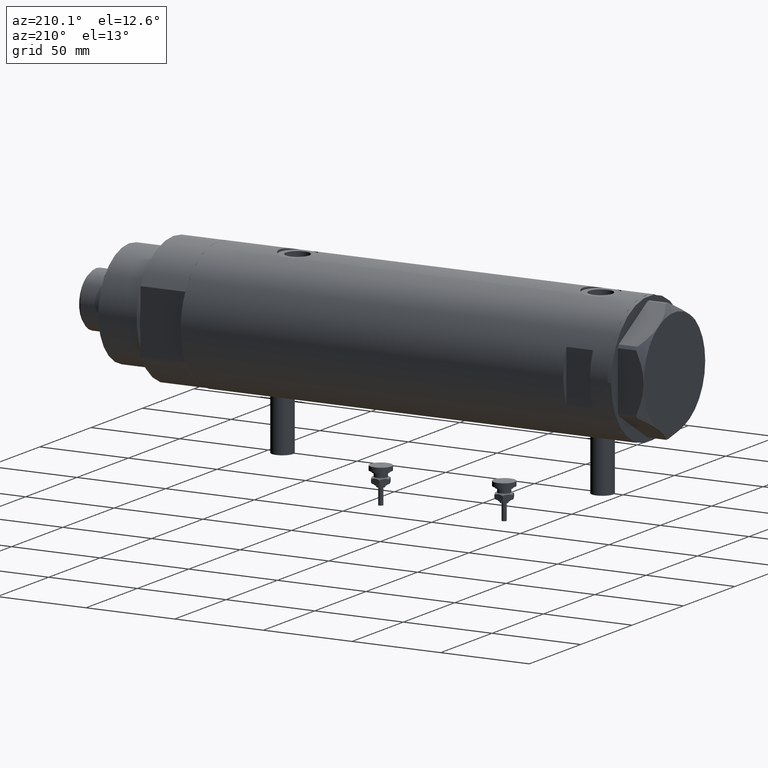
[diagram: clean part render]
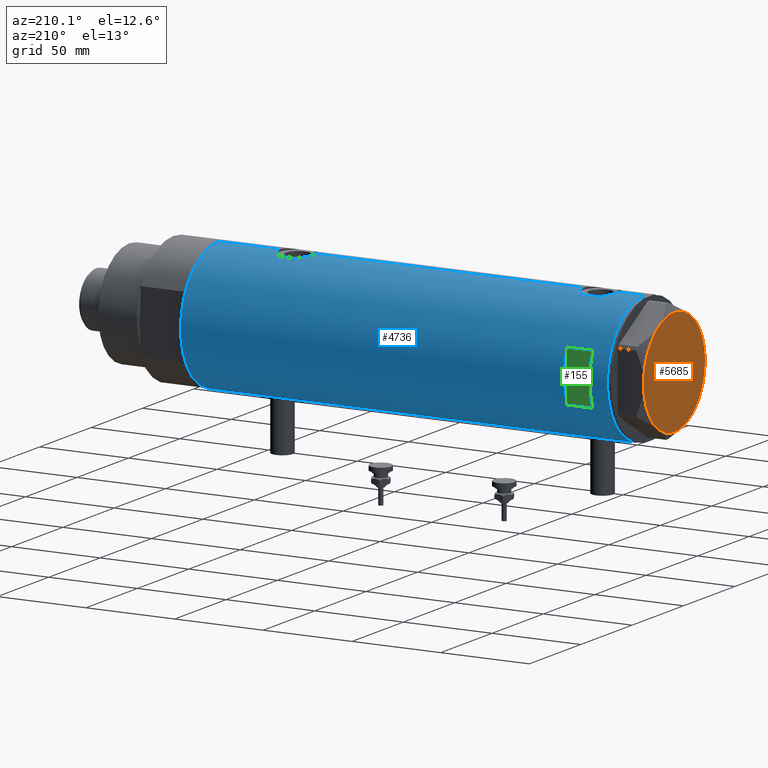
[diagram: same view with three faces highlighted in distinct colors, each labeled with its STEP entity id]
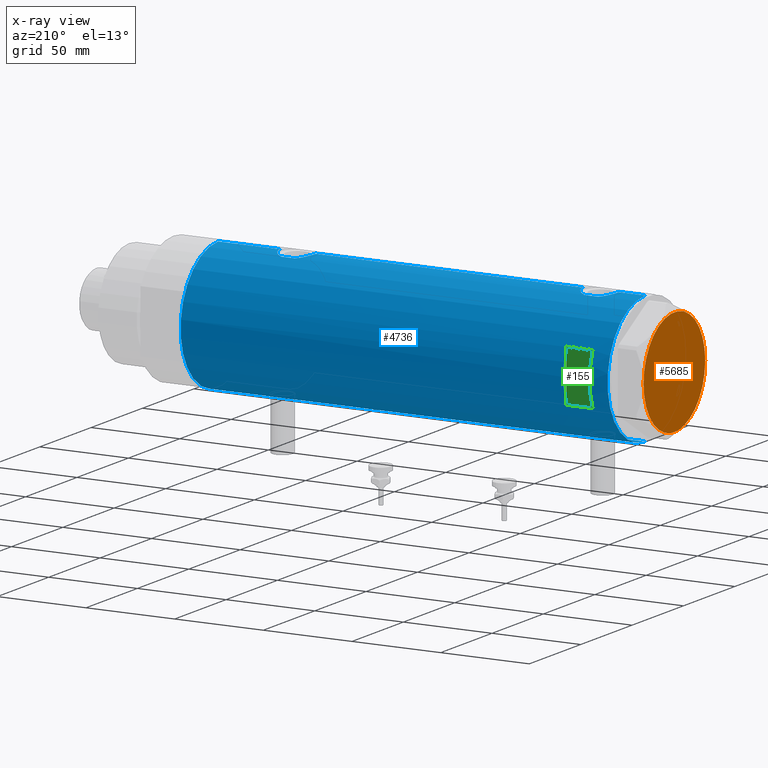
[diagram: x-ray of the same camera — body ghosted, the three highlighted faces saturated]
A machine part, auxiliary view with three faces highlighted in distinct colors.
The next image is the same camera in x-ray (body ghosted, the three faces saturated) — at least one of them is partly hidden behind the body in this view.
Their STEP definitions:

[orange] entity #5685 — the highlighted planar face has unit normal (-1, -0, 0).
#96 = DIRECTION ( 'NONE',  ( 0.000000000000000000, 0.000000000000000000, 1.000000000000000000 ) ) ;
#97 = CARTESIAN_POINT ( 'NONE',  ( 0.000000000000000000, 0.000000000000000000, 14.50000000000000000 ) ) ;
#124 = CARTESIAN_POINT ( 'NONE',  ( 0.000000000000000000, 0.000000000000000000, 14.50000000000000000 ) ) ;
#221 = CARTESIAN_POINT ( 'NONE',  ( 14.99999999999999467, 25.98076211353316367, 14.50000000000000000 ) ) ;
#236 = DIRECTION ( 'NONE',  ( 0.000000000000000000, 0.000000000000000000, 1.000000000000000000 ) ) ;
#304 = AXIS2_PLACEMENT_3D ( 'NONE', #5623, #1092, #5655 ) ;
#546 = AXIS2_PLACEMENT_3D ( 'NONE', #124, #96, #3716 ) ;
#745 = AXIS2_PLACEMENT_3D ( 'NONE', #4242, #236, #1174 ) ;
#816 = CARTESIAN_POINT ( 'NONE',  ( 0.000000000000000000, 0.000000000000000000, 14.50000000000000000 ) ) ;
#1009 = CARTESIAN_POINT ( 'NONE',  ( 14.99999999999998757, -25.98076211353316722, 14.50000000000000000 ) ) ;
#1092 = DIRECTION ( 'NONE',  ( 0.000000000000000000, 0.000000000000000000, 1.000000000000000000 ) ) ;
#1174 = DIRECTION ( 'NONE',  ( 1.000000000000000000, 0.000000000000000000, 0.000000000000000000 ) ) ;
#1223 = CARTESIAN_POINT ( 'NONE',  ( 0.000000000000000000, 0.000000000000000000, 14.50000000000000000 ) ) ;
#1335 = EDGE_CURVE ( 'NONE', #2520, #1673, #1608, .T. ) ;
#1340 = AXIS2_PLACEMENT_3D ( 'NONE', #97, #3205, #2405 ) ;
#1362 = CARTESIAN_POINT ( 'NONE',  ( -14.99999999999999645, 25.98076211353316367, 14.50000000000000000 ) ) ;
#1363 = CARTESIAN_POINT ( 'NONE',  ( 30.00000000000000000, 9.013887592422954582E-15, 14.50000000000000000 ) ) ;
#1608 = CIRCLE ( 'NONE', #546, 30.00000000000000000 ) ;
#1616 = CARTESIAN_POINT ( 'NONE',  ( -14.99999999999999645, -25.98076211353316367, 14.50000000000000000 ) ) ;
#1673 = VERTEX_POINT ( 'NONE', #1363 ) ;
#1680 = CARTESIAN_POINT ( 'NONE',  ( -30.00000000000000000, 0.000000000000000000, 14.50000000000000000 ) ) ;
#1920 = CIRCLE ( 'NONE', #3072, 30.00000000000000000 ) ;
#1985 = PLANE ( 'NONE',  #304 ) ;
#2176 = EDGE_CURVE ( 'NONE', #2829, #3965, #5145, .T. ) ;
#2244 = EDGE_CURVE ( 'NONE', #3965, #2520, #4864, .T. ) ;
#2405 = DIRECTION ( 'NONE',  ( 1.000000000000000000, 0.000000000000000000, 0.000000000000000000 ) ) ;
#2520 = VERTEX_POINT ( 'NONE', #1009 ) ;
#2578 = ORIENTED_EDGE ( 'NONE', *, *, #1335, .T. ) ;
#2829 = VERTEX_POINT ( 'NONE', #1680 ) ;
#2930 = DIRECTION ( 'NONE',  ( 0.000000000000000000, 0.000000000000000000, 1.000000000000000000 ) ) ;
#2971 = ORIENTED_EDGE ( 'NONE', *, *, #2244, .T. ) ;
#3041 = DIRECTION ( 'NONE',  ( 0.000000000000000000, 0.000000000000000000, 1.000000000000000000 ) ) ;
#3044 = CIRCLE ( 'NONE', #1340, 30.00000000000000000 ) ;
#3059 = EDGE_LOOP ( 'NONE', ( #2578, #5712, #5798, #3459, #4038, #2971 ) ) ;
#3072 = AXIS2_PLACEMENT_3D ( 'NONE', #1223, #3041, #5272 ) ;
#3107 = EDGE_CURVE ( 'NONE', #5810, #3372, #3044, .T. ) ;
#3146 = CIRCLE ( 'NONE', #3235, 30.00000000000000000 ) ;
#3205 = DIRECTION ( 'NONE',  ( 0.000000000000000000, 0.000000000000000000, 1.000000000000000000 ) ) ;
#3235 = AXIS2_PLACEMENT_3D ( 'NONE', #816, #5801, #4467 ) ;
#3285 = EDGE_CURVE ( 'NONE', #3372, #2829, #3146, .T. ) ;
#3372 = VERTEX_POINT ( 'NONE', #1362 ) ;
#3459 = ORIENTED_EDGE ( 'NONE', *, *, #3285, .T. ) ;
#3716 = DIRECTION ( 'NONE',  ( 1.000000000000000000, 0.000000000000000000, 0.000000000000000000 ) ) ;
#3965 = VERTEX_POINT ( 'NONE', #1616 ) ;
#4038 = ORIENTED_EDGE ( 'NONE', *, *, #2176, .T. ) ;
#4242 = CARTESIAN_POINT ( 'NONE',  ( 0.000000000000000000, 0.000000000000000000, 14.50000000000000000 ) ) ;
#4303 = DIRECTION ( 'NONE',  ( 1.000000000000000000, 0.000000000000000000, 0.000000000000000000 ) ) ;
#4378 = AXIS2_PLACEMENT_3D ( 'NONE', #5723, #2930, #4303 ) ;
#4467 = DIRECTION ( 'NONE',  ( 1.000000000000000000, 0.000000000000000000, 0.000000000000000000 ) ) ;
#4744 = FACE_OUTER_BOUND ( 'NONE', #3059, .T. ) ;
#4864 = CIRCLE ( 'NONE', #4378, 30.00000000000000000 ) ;
#5145 = CIRCLE ( 'NONE', #745, 30.00000000000000000 ) ;
#5156 = EDGE_CURVE ( 'NONE', #1673, #5810, #1920, .T. ) ;
#5272 = DIRECTION ( 'NONE',  ( 1.000000000000000000, 0.000000000000000000, 0.000000000000000000 ) ) ;
#5623 = CARTESIAN_POINT ( 'NONE',  ( 0.000000000000000000, 0.000000000000000000, 14.50000000000000000 ) ) ;
#5655 = DIRECTION ( 'NONE',  ( 1.000000000000000000, 0.000000000000000000, -0.000000000000000000 ) ) ;
#5685 = ADVANCED_FACE ( 'NONE', ( #4744 ), #1985, .T. ) ;
#5712 = ORIENTED_EDGE ( 'NONE', *, *, #5156, .T. ) ;
#5723 = CARTESIAN_POINT ( 'NONE',  ( 0.000000000000000000, 0.000000000000000000, 14.50000000000000000 ) ) ;
#5798 = ORIENTED_EDGE ( 'NONE', *, *, #3107, .T. ) ;
#5801 = DIRECTION ( 'NONE',  ( 0.000000000000000000, 0.000000000000000000, 1.000000000000000000 ) ) ;
#5810 = VERTEX_POINT ( 'NONE', #221 ) ;

[blue] entity #4736 — the highlighted cylindrical surface (partial cylindrical patch) has radius 36.5 mm, axis along (-1, -0, 0).
#3 = VERTEX_POINT ( 'NONE', #2732 ) ;
#69 = AXIS2_PLACEMENT_3D ( 'NONE', #5260, #4347, #422 ) ;
#83 = CARTESIAN_POINT ( 'NONE',  ( -35.99530513653993324, 6.049346314076207598, -85.72332583035837672 ) ) ;
#117 = CARTESIAN_POINT ( 'NONE',  ( 0.000000000000000000, 0.000000000000000000, 95.40000000000014779 ) ) ;
#138 = CARTESIAN_POINT ( 'NONE',  ( 35.29999999999999716, 9.282241108697837362, -79.32021504754763441 ) ) ;
#148 = DIRECTION ( 'NONE',  ( 0.000000000000000000, 4.625929269271492422E-15, 1.000000000000000000 ) ) ;
#149 = CARTESIAN_POINT ( 'NONE',  ( -36.50000000000000000, 4.469960816887838430E-15, -120.4000000000000057 ) ) ;
#168 = CARTESIAN_POINT ( 'NONE',  ( 36.18948008481302026, 4.772042575486208804, -84.40177631243157919 ) ) ;
#187 = CARTESIAN_POINT ( 'NONE',  ( 36.18937351723702278, 4.773052864917646687, -66.79864006881156513 ) ) ;
#188 = EDGE_CURVE ( 'NONE', #445, #1055, #5351, .T. ) ;
#199 = CARTESIAN_POINT ( 'NONE',  ( 35.79766710091575987, 7.135341284989891619, -82.62350520560903533 ) ) ;
#225 = EDGE_CURVE ( 'NONE', #1740, #4537, #333, .T. ) ;
#237 = CARTESIAN_POINT ( 'NONE',  ( -36.40902375114221456, 2.582415566883930591, -89.79521691469687994 ) ) ;
#275 = CARTESIAN_POINT ( 'NONE',  ( 36.26917563968160607, 4.104523505324181087, 86.27784011632525107 ) ) ;
#277 = CARTESIAN_POINT ( 'NONE',  ( 35.29999999999999716, 9.282241108697837362, -71.87978495245236843 ) ) ;
#284 = VECTOR ( 'NONE', #5139, 1000.000000000000000 ) ;
#296 = CARTESIAN_POINT ( 'NONE',  ( 35.72794581931695745, 7.469526493268205058, 102.0533979672826490 ) ) ;
#310 = CARTESIAN_POINT ( 'NONE',  ( -36.03936508729894683, 5.782103729777505308, 98.79870532603798949 ) ) ;
#312 = CARTESIAN_POINT ( 'NONE',  ( 36.12877841835537396, 5.208882251161925936, -67.04946835209707956 ) ) ;
#333 = LINE ( 'NONE', #4615, #4957 ) ;
#339 = CARTESIAN_POINT ( 'NONE',  ( -36.01679413914729366, 5.919813138266330377, 98.41499691047042120 ) ) ;
#343 = DIRECTION ( 'NONE',  ( 0.000000000000000000, 0.000000000000000000, 1.000000000000000000 ) ) ;
#367 = CARTESIAN_POINT ( 'NONE',  ( -36.44504802628534179, 2.011764947064737630, 102.3209364490851954 ) ) ;
#378 = EDGE_CURVE ( 'NONE', #4005, #3132, #5278, .T. ) ;
#422 = DIRECTION ( 'NONE',  ( 1.000000000000000000, 0.000000000000000000, 0.000000000000000000 ) ) ;
#424 = CARTESIAN_POINT ( 'NONE',  ( 35.52737867031126484, 8.373910777960906771, 89.91139643282933491 ) ) ;
#438 = CYLINDRICAL_SURFACE ( 'NONE', #5472, 36.50000000000000000 ) ;
#445 = VERTEX_POINT ( 'NONE', #5424 ) ;
#469 = EDGE_CURVE ( 'NONE', #5706, #3886, #834, .T. ) ;
#472 = CARTESIAN_POINT ( 'NONE',  ( -35.96088929326157313, 6.250155299092687855, -84.50610494763246550 ) ) ;
#478 = ORIENTED_EDGE ( 'NONE', *, *, #378, .T. ) ;
#483 = VERTEX_POINT ( 'NONE', #3472 ) ;
#562 = B_SPLINE_CURVE_WITH_KNOTS ( 'NONE', 3,
 ( #2650, #4478, #3121, #2085, #1254, #1194, #3900, #5753, #731, #4380, #2117, #5327, #1219, #3036, #4872, #765, #2591, #2147, #3071, #4679, #4922, #2749, #472, #2301, #83, #4116, #3672, #5514, #955, #1912, #4610, #2331, #3700, #5547, #1438, #986, #1473, #237, #5176, #1620, #3535, #1346, #3046 ),
 .UNSPECIFIED., .F., .F.,
 ( 4, 2, 2, 2, 2, 2, 2, 2, 1, 2, 2, 2, 2, 2, 2, 2, 2, 2, 2, 2, 2, 4 ),
 ( 1.558294008431693624E-18, 0.001223527801214140684, 0.001835291701821213954, 0.002447055602428288307, 0.003670583403642434413, 0.004894111204856580084, 0.006117639006070725756, 0.006729402906677815072, 0.007341166807284903520, 0.007952930707891993703, 0.008564694608499082151, 0.009788222409713260783, 0.01101175021092743941, 0.01223527801214161631, 0.01284704191274868568, 0.01345880581335575504, 0.01468233361456989725, 0.01590586141578403945, 0.01651762531639110881, 0.01712938921699818165, 0.01835291701821230650, 0.01957644481942643136 ),
 .UNSPECIFIED. ) ;
#585 = CARTESIAN_POINT ( 'NONE',  ( 36.50000000000000711, 1.005842003469123336, -85.59999999999999432 ) ) ;
#604 = CARTESIAN_POINT ( 'NONE',  ( 35.93456089024232369, 6.410413305453381838, 87.70914036795856816 ) ) ;
#621 = CARTESIAN_POINT ( 'NONE',  ( 36.49999999999999289, 0.4961820988516178477, 105.3999999999999915 ) ) ;
#697 = CARTESIAN_POINT ( 'NONE',  ( 36.44688397185920081, 1.983417953489138741, -65.79550042351749539 ) ) ;
#704 = B_SPLINE_CURVE_WITH_KNOTS ( 'NONE', 3,
 ( #1979, #2548, #5192, #4371, #1088, #4773, #275, #2106, #3924, #4255, #604, #4927, #4899, #5382, #424, #1245, #4862, #3115 ),
 .UNSPECIFIED., .F., .F.,
 ( 4, 2, 2, 2, 2, 2, 2, 2, 4 ),
 ( 1.734723475976807094E-18, 0.002973648994175672518, 0.003717061242719596394, 0.004460473491263520704, 0.005947297988351386670, 0.007434122485439251769, 0.008920946982527117736, 0.01040777147961498283, 0.01189459597670284793 ),
 .UNSPECIFIED. ) ;
#705 = EDGE_CURVE ( 'NONE', #5706, #3463, #4180, .T. ) ;
#723 = CARTESIAN_POINT ( 'NONE',  ( 35.39804469700249001, 8.909380959553011792, -70.94946835517158945 ) ) ;
#727 = LINE ( 'NONE', #1732, #3346 ) ;
#731 = CARTESIAN_POINT ( 'NONE',  ( -36.36688032967140316, 3.133094607697482825, -78.67663567362490085 ) ) ;
#755 = CARTESIAN_POINT ( 'NONE',  ( -36.11199073531170001, 5.309184630646994307, 99.70412840766836382 ) ) ;
#765 = CARTESIAN_POINT ( 'NONE',  ( -36.06675137892952421, 5.607935153446978127, -81.33318173991246169 ) ) ;
#766 = B_SPLINE_CURVE_WITH_KNOTS ( 'NONE', 3,
 ( #2641, #1807, #5467, #3603, #5434, #367, #4439, #3145, #2198, #4006, #1331, #1758, #5865, #755, #3512, #2582, #310, #339, #2165, #3579, #3979, #1725, #3550, #1278, #3708, #3173, #1446, #4091, #1833, #5555, #4587, #5588, #5060, #2788, #4151, #2725, #3261, #4556, #4182, #3653, #2818, #2367, #4641 ),
 .UNSPECIFIED., .F., .F.,
 ( 4, 2, 2, 2, 2, 2, 2, 2, 1, 2, 2, 2, 2, 2, 2, 2, 2, 2, 2, 2, 2, 4 ),
 ( 1.558294008431693624E-18, 0.001223527801214140684, 0.001835291701821213954, 0.002447055602428288307, 0.003670583403642434413, 0.004894111204856580084, 0.006117639006070725756, 0.006729402906677815072, 0.007341166807284903520, 0.007952930707891993703, 0.008564694608499082151, 0.009788222409713260783, 0.01101175021092743941, 0.01223527801214161631, 0.01284704191274868568, 0.01345880581335575504, 0.01468233361456989725, 0.01590586141578403945, 0.01651762531639110881, 0.01712938921699818165, 0.01835291701821230650, 0.01957644481942643136 ),
 .UNSPECIFIED. ) ;
#834 = LINE ( 'NONE', #3972, #1713 ) ;
#907 = ORIENTED_EDGE ( 'NONE', *, *, #3298, .T. ) ;
#955 = CARTESIAN_POINT ( 'NONE',  ( -36.09643313249890184, 5.413601294342275771, -87.23007773391852027 ) ) ;
#964 = VECTOR ( 'NONE', #1580, 1000.000000000000000 ) ;
#986 = CARTESIAN_POINT ( 'NONE',  ( -36.36587679577595367, 3.131448301962863834, -89.51282465573618197 ) ) ;
#1022 = AXIS2_PLACEMENT_3D ( 'NONE', #1072, #1585, #3339 ) ;
#1053 = AXIS2_PLACEMENT_3D ( 'NONE', #117, #148, #3312 ) ;
#1055 = VERTEX_POINT ( 'NONE', #3835 ) ;
#1072 = CARTESIAN_POINT ( 'NONE',  ( 0.000000000000000000, 0.000000000000000000, -120.4000000000000057 ) ) ;
#1078 = ORIENTED_EDGE ( 'NONE', *, *, #4202, .F. ) ;
#1088 = CARTESIAN_POINT ( 'NONE',  ( 36.34070350304396868, 3.414301401755543974, 85.99763782624094688 ) ) ;
#1089 = CARTESIAN_POINT ( 'NONE',  ( 36.34264078466112124, 3.418717136061403927, -66.18950965959250254 ) ) ;
#1105 = CARTESIAN_POINT ( 'NONE',  ( -36.50000000000000000, 1.603939656238031057E-15, -77.85000000000000853 ) ) ;
#1113 = CARTESIAN_POINT ( 'NONE',  ( 35.29999999999999716, 9.282241108697837362, -71.87978495245236843 ) ) ;
#1121 = CARTESIAN_POINT ( 'NONE',  ( 35.29999999999999716, 9.282241108697837362, -120.4000000000000057 ) ) ;
#1126 = CARTESIAN_POINT ( 'NONE',  ( 36.50000000000000000, 0.000000000000000000, -120.4000000000000057 ) ) ;
#1159 = CARTESIAN_POINT ( 'NONE',  ( 36.48988646280794512, 0.9921857666168139023, -65.63671884865574668 ) ) ;
#1167 = CARTESIAN_POINT ( 'NONE',  ( 35.93456089024232369, 6.410413305453381838, -83.29085963204141763 ) ) ;
#1186 = CARTESIAN_POINT ( 'NONE',  ( 36.45954139109321801, 1.735915671103595681, -65.74863218852992475 ) ) ;
#1187 = EDGE_CURVE ( 'NONE', #3, #445, #3301, .T. ) ;
#1194 = CARTESIAN_POINT ( 'NONE',  ( -36.44504802628534179, 2.011764947064737630, -78.17906355091480464 ) ) ;
#1203 = CARTESIAN_POINT ( 'NONE',  ( 35.52347503888660896, 8.410566959990466884, 100.8995396725934057 ) ) ;
#1219 = CARTESIAN_POINT ( 'NONE',  ( -36.16126303108062956, 4.966520032693302333, -80.28358772254716769 ) ) ;
#1232 = CARTESIAN_POINT ( 'NONE',  ( 36.45954139109321801, 1.735915671103595681, 105.2513678114701179 ) ) ;
#1240 = ORIENTED_EDGE ( 'NONE', *, *, #225, .F. ) ;
#1245 = CARTESIAN_POINT ( 'NONE',  ( 35.40502660484481368, 8.876998817796907915, 90.76901275928764790 ) ) ;
#1251 = VERTEX_POINT ( 'NONE', #5066 ) ;
#1254 = CARTESIAN_POINT ( 'NONE',  ( -36.46462099658055678, 1.618684470865507041, -78.05975602975156846 ) ) ;
#1278 = CARTESIAN_POINT ( 'NONE',  ( -35.96805604460922723, 6.209309709790234777, 95.57887241731832262 ) ) ;
#1295 = DIRECTION ( 'NONE',  ( 1.000000000000000000, 0.000000000000000000, 0.000000000000000000 ) ) ;
#1331 = CARTESIAN_POINT ( 'NONE',  ( -36.26643311080166399, 4.132772529026635944, 101.1061940526988536 ) ) ;
#1346 = CARTESIAN_POINT ( 'NONE',  ( -36.49999999999999289, 0.4083036190459308212, -90.34999999999998010 ) ) ;
#1390 = ORIENTED_EDGE ( 'NONE', *, *, #188, .F. ) ;
#1407 = ORIENTED_EDGE ( 'NONE', *, *, #2429, .F. ) ;
#1438 = CARTESIAN_POINT ( 'NONE',  ( -36.35033317675380005, 3.306376218664579536, -89.40770719416052259 ) ) ;
#1446 = CARTESIAN_POINT ( 'NONE',  ( -36.05296344941216091, 5.695624845616832133, 93.81845143463246472 ) ) ;
#1473 = CARTESIAN_POINT ( 'NONE',  ( -36.39522946636253664, 2.769519034821242176, -89.70663923731271439 ) ) ;
#1481 = EDGE_CURVE ( 'NONE', #3486, #483, #2815, .T. ) ;
#1498 = CARTESIAN_POINT ( 'NONE',  ( 14.49137674618942739, 33.50000000000000000, -120.4000000000000057 ) ) ;
#1555 = EDGE_CURVE ( 'NONE', #2803, #4253, #5221, .T. ) ;
#1560 = CARTESIAN_POINT ( 'NONE',  ( 35.29999999999999716, 9.282241108697837362, -79.32021504754763441 ) ) ;
#1580 = DIRECTION ( 'NONE',  ( 0.000000000000000000, 0.000000000000000000, 1.000000000000000000 ) ) ;
#1585 = DIRECTION ( 'NONE',  ( 0.000000000000000000, 0.000000000000000000, 1.000000000000000000 ) ) ;
#1587 = CARTESIAN_POINT ( 'NONE',  ( 36.50000000000000000, 0.000000000000000000, -85.59999999999999432 ) ) ;
#1591 = CARTESIAN_POINT ( 'NONE',  ( 35.29999999999999716, 9.282241108697837362, 99.12021504754764578 ) ) ;
#1610 = CARTESIAN_POINT ( 'NONE',  ( 35.34894515018992678, 9.096104616284845790, -79.78464083466539591 ) ) ;
#1617 = AXIS2_PLACEMENT_3D ( 'NONE', #3183, #1847, #3157 ) ;
#1620 = CARTESIAN_POINT ( 'NONE',  ( -36.46598788992680085, 1.625721481788714895, -90.14872046713837506 ) ) ;
#1636 = CARTESIAN_POINT ( 'NONE',  ( 35.72794581931695745, 7.469526493268205058, -68.94660203271739363 ) ) ;
#1667 = VERTEX_POINT ( 'NONE', #1808 ) ;
#1682 = CARTESIAN_POINT ( 'NONE',  ( 36.34264078466112124, 3.418717136061403927, 104.8104903404075543 ) ) ;
#1713 = VECTOR ( 'NONE', #2574, 1000.000000000000000 ) ;
#1725 = CARTESIAN_POINT ( 'NONE',  ( -35.96094343308265451, 6.249843792257633091, 96.81087110344570590 ) ) ;
#1732 = CARTESIAN_POINT ( 'NONE',  ( -36.50000000000000000, 4.469960816887838430E-15, -120.4000000000000057 ) ) ;
#1740 = VERTEX_POINT ( 'NONE', #5676 ) ;
#1757 = ORIENTED_EDGE ( 'NONE', *, *, #4986, .T. ) ;
#1758 = CARTESIAN_POINT ( 'NONE',  ( -36.19624103943463922, 4.708090268046848159, 100.5306122144613994 ) ) ;
#1807 = CARTESIAN_POINT ( 'NONE',  ( -36.50000000000000000, 0.4137727629436737664, 102.6500000000000057 ) ) ;
#1808 = CARTESIAN_POINT ( 'NONE',  ( 14.49137674618942917, 33.50000000000000000, 95.40000000000000568 ) ) ;
#1829 = CARTESIAN_POINT ( 'NONE',  ( 35.29999999999999716, 9.282241108697837362, 91.67978495245237980 ) ) ;
#1833 = CARTESIAN_POINT ( 'NONE',  ( -36.09643313249890184, 5.413601294342275771, 93.26992226608146552 ) ) ;
#1847 = DIRECTION ( 'NONE',  ( -0.000000000000000000, -0.000000000000000000, -1.000000000000000000 ) ) ;
#1857 = ORIENTED_EDGE ( 'NONE', *, *, #4348, .F. ) ;
#1912 = CARTESIAN_POINT ( 'NONE',  ( -36.11206433103227198, 5.308658295084048184, -87.40484648040978755 ) ) ;
#1928 = CARTESIAN_POINT ( 'NONE',  ( 36.50000000000000000, 0.000000000000000000, -120.4000000000000057 ) ) ;
#1956 = DIRECTION ( 'NONE',  ( 0.000000000000000000, 0.000000000000000000, 1.000000000000000000 ) ) ;
#1979 = CARTESIAN_POINT ( 'NONE',  ( 36.50000000000000000, 0.000000000000000000, 85.40000000000001990 ) ) ;
#2013 = CARTESIAN_POINT ( 'NONE',  ( 35.93435287561198521, 6.411571491280768420, -67.91011355077158385 ) ) ;
#2034 = ORIENTED_EDGE ( 'NONE', *, *, #1555, .T. ) ;
#2055 = CARTESIAN_POINT ( 'NONE',  ( 35.72860827204725354, 7.471059959301281417, -82.26525150474411419 ) ) ;
#2085 = CARTESIAN_POINT ( 'NONE',  ( -36.47290054070997201, 1.420408912806973678, -78.01013018339985194 ) ) ;
#2106 = CARTESIAN_POINT ( 'NONE',  ( 36.18948008481302026, 4.772042575486208804, 86.59822368756844924 ) ) ;
#2107 = CARTESIAN_POINT ( 'NONE',  ( 36.40008489419980720, 2.709263960908029123, -65.97081895403607632 ) ) ;
#2117 = CARTESIAN_POINT ( 'NONE',  ( -36.26643311080166399, 4.132772529026635944, -79.39380594730118901 ) ) ;
#2127 = CARTESIAN_POINT ( 'NONE',  ( 35.79715675463678792, 7.130463293899340194, 102.4155558410599696 ) ) ;
#2141 = CARTESIAN_POINT ( 'NONE',  ( 36.49999999999999289, 0.4961820988516178477, -65.59999999999999432 ) ) ;
#2147 = CARTESIAN_POINT ( 'NONE',  ( -36.01679413914729366, 5.919813138266330377, -82.08500308952964986 ) ) ;
#2165 = CARTESIAN_POINT ( 'NONE',  ( -35.99700617875953412, 6.038972911021586398, 98.02333185798320869 ) ) ;
#2198 = CARTESIAN_POINT ( 'NONE',  ( -36.36688032967140316, 3.133094607697482825, 101.8233643263751276 ) ) ;
#2269 = DIRECTION ( 'NONE',  ( 0.000000000000000000, 0.000000000000000000, 1.000000000000000000 ) ) ;
#2277 = LINE ( 'NONE', #3977, #5065 ) ;
#2301 = CARTESIAN_POINT ( 'NONE',  ( -35.96805604460922723, 6.209309709790234777, -84.92112758268174844 ) ) ;
#2331 = CARTESIAN_POINT ( 'NONE',  ( -36.19597718496778072, 4.710322426433902976, -88.22851610762016605 ) ) ;
#2367 = CARTESIAN_POINT ( 'NONE',  ( -36.49999999999999289, 0.4083036190459308212, 90.14999999999997726 ) ) ;
#2418 = CARTESIAN_POINT ( 'NONE',  ( 36.45853166336080875, 1.985123042546145022, -85.45162670417735740 ) ) ;
#2429 = EDGE_CURVE ( 'NONE', #4537, #2449, #5838, .T. ) ;
#2449 = VERTEX_POINT ( 'NONE', #2835 ) ;
#2450 = CARTESIAN_POINT ( 'NONE',  ( 36.50000000000000000, 4.344614706140975428E-19, 105.4000000000000057 ) ) ;
#2458 = ORIENTED_EDGE ( 'NONE', *, *, #4626, .F. ) ;
#2483 = DIRECTION ( 'NONE',  ( 0.000000000000000000, 0.000000000000000000, 1.000000000000000000 ) ) ;
#2548 = CARTESIAN_POINT ( 'NONE',  ( 36.50000000000000711, 1.005842003469123336, 85.40000000000003411 ) ) ;
#2549 = CARTESIAN_POINT ( 'NONE',  ( 35.83170458557578542, 6.955065627744199119, -68.41058328087537177 ) ) ;
#2574 = DIRECTION ( 'NONE',  ( 0.000000000000000000, 0.000000000000000000, 1.000000000000000000 ) ) ;
#2582 = CARTESIAN_POINT ( 'NONE',  ( -36.06675137892952421, 5.607935153446978127, 99.16681826008760936 ) ) ;
#2591 = CARTESIAN_POINT ( 'NONE',  ( -36.03936508729894683, 5.782103729777505308, -81.70129467396205314 ) ) ;
#2641 = CARTESIAN_POINT ( 'NONE',  ( -36.50000000000000000, 1.603939656238031057E-15, 102.6500000000000199 ) ) ;
#2650 = CARTESIAN_POINT ( 'NONE',  ( -36.50000000000000000, 1.603939656238031057E-15, -77.85000000000000853 ) ) ;
#2673 = CARTESIAN_POINT ( 'NONE',  ( 35.29999999999999716, 9.282241108697837362, -120.4000000000000057 ) ) ;
#2699 = LINE ( 'NONE', #2673, #5647 ) ;
#2701 = DIRECTION ( 'NONE',  ( -0.000000000000000000, -0.000000000000000000, -1.000000000000000000 ) ) ;
#2725 = CARTESIAN_POINT ( 'NONE',  ( -36.36587679577595367, 3.131448301962863834, 90.98717534426380382 ) ) ;
#2732 = CARTESIAN_POINT ( 'NONE',  ( 36.50000000000000000, 4.344614706140975428E-19, 105.4000000000000057 ) ) ;
#2749 = CARTESIAN_POINT ( 'NONE',  ( -35.96094343308265451, 6.249843792257633091, -83.68912889655432252 ) ) ;
#2786 = EDGE_CURVE ( 'NONE', #4005, #3893, #562, .T. ) ;
#2788 = CARTESIAN_POINT ( 'NONE',  ( -36.30181775639987052, 3.813582387016785091, 91.43163942425562141 ) ) ;
#2803 = VERTEX_POINT ( 'NONE', #5822 ) ;
#2815 = B_SPLINE_CURVE_WITH_KNOTS ( 'NONE', 3,
 ( #277, #723, #4345, #4287, #1636, #5289, #2549, #2013, #5682, #312, #187, #5317, #1089, #2107, #3830, #697, #1186, #1159, #2141, #4741 ),
 .UNSPECIFIED., .F., .F.,
 ( 4, 2, 2, 2, 2, 2, 2, 2, 2, 4 ),
 ( 0.000000000000000000, 0.002977391289382919342, 0.003721739111728640179, 0.004466086934074362316, 0.005954782578765775367, 0.007443478223457188417, 0.008932173868148601467, 0.009676521690494316666, 0.01042086951284003013, 0.01190956515753145012 ),
 .UNSPECIFIED. ) ;
#2818 = CARTESIAN_POINT ( 'NONE',  ( -36.49292802938585822, 0.8230716655928924652, 90.19093061246485377 ) ) ;
#2835 = CARTESIAN_POINT ( 'NONE',  ( 14.49137674618942739, 33.50000000000000000, 110.3999999999999915 ) ) ;
#2899 = CARTESIAN_POINT ( 'NONE',  ( 36.36225053217120973, 3.177096004138049601, -85.08516024475976280 ) ) ;
#2923 = CARTESIAN_POINT ( 'NONE',  ( 36.13018480315372472, 5.199168368309159405, -84.15646498208049309 ) ) ;
#2924 = VERTEX_POINT ( 'NONE', #5482 ) ;
#2993 = CARTESIAN_POINT ( 'NONE',  ( 35.69321149401851301, 7.633476302278308978, 101.8646307216643976 ) ) ;
#3012 = EDGE_CURVE ( 'NONE', #3886, #5164, #4498, .T. ) ;
#3021 = CARTESIAN_POINT ( 'NONE',  ( 35.93435287561198521, 6.411571491280768420, 103.0898864492284304 ) ) ;
#3036 = CARTESIAN_POINT ( 'NONE',  ( -36.11199073531170001, 5.309184630646994307, -80.79587159233167881 ) ) ;
#3046 = CARTESIAN_POINT ( 'NONE',  ( -36.50000000000000000, 4.469960493350315609E-15, -90.35000000000000853 ) ) ;
#3049 = CARTESIAN_POINT ( 'NONE',  ( 36.48988646280794512, 0.9921857666168139023, 105.3632811513442249 ) ) ;
#3071 = CARTESIAN_POINT ( 'NONE',  ( -35.99700617875953412, 6.038972911021586398, -82.47666814201681973 ) ) ;
#3115 = CARTESIAN_POINT ( 'NONE',  ( 35.29999999999999716, 9.282241108697837362, 91.67978495245237980 ) ) ;
#3121 = CARTESIAN_POINT ( 'NONE',  ( -36.49297130294515057, 0.8204796224394291793, -77.89068307782268619 ) ) ;
#3132 = VERTEX_POINT ( 'NONE', #3718 ) ;
#3145 = CARTESIAN_POINT ( 'NONE',  ( -36.39638105034455151, 2.774378062517171006, 102.0154333269910296 ) ) ;
#3157 = DIRECTION ( 'NONE',  ( 1.000000000000000000, 1.776356839400250465E-15, 0.000000000000000000 ) ) ;
#3173 = CARTESIAN_POINT ( 'NONE',  ( -36.01524716445113938, 5.931039972055515364, 94.38669268135348034 ) ) ;
#3183 = CARTESIAN_POINT ( 'NONE',  ( 0.000000000000000000, 0.000000000000000000, 110.3999999999999915 ) ) ;
#3222 = EDGE_CURVE ( 'NONE', #1251, #4253, #704, .T. ) ;
#3261 = CARTESIAN_POINT ( 'NONE',  ( -36.39522946636253664, 2.769519034821242176, 90.79336076268728561 ) ) ;
#3298 = EDGE_CURVE ( 'NONE', #3486, #5164, #2699, .T. ) ;
#3301 = LINE ( 'NONE', #1126, #4657 ) ;
#3312 = DIRECTION ( 'NONE',  ( 0.000000000000000000, 1.000000000000000000, -4.562560375171875891E-15 ) ) ;
#3327 = EDGE_CURVE ( 'NONE', #2924, #3132, #766, .T. ) ;
#3337 = CARTESIAN_POINT ( 'NONE',  ( 36.26917563968160607, 4.104523505324181087, -84.72215988367473471 ) ) ;
#3339 = DIRECTION ( 'NONE',  ( 1.000000000000000000, 0.000000000000000000, 0.000000000000000000 ) ) ;
#3346 = VECTOR ( 'NONE', #343, 1000.000000000000000 ) ;
#3376 = CARTESIAN_POINT ( 'NONE',  ( 36.44688397185920081, 1.983417953489138741, 105.2044995764825757 ) ) ;
#3405 = CARTESIAN_POINT ( 'NONE',  ( 36.12877841835537396, 5.208882251161925936, 103.9505316479029347 ) ) ;
#3463 = VERTEX_POINT ( 'NONE', #4825 ) ;
#3471 = CARTESIAN_POINT ( 'NONE',  ( -14.49137674618942739, 33.50000000000000000, 110.3999999999999915 ) ) ;
#3472 = CARTESIAN_POINT ( 'NONE',  ( 36.50000000000000000, 4.344614706140975428E-19, -65.60000000000000853 ) ) ;
#3486 = VERTEX_POINT ( 'NONE', #1113 ) ;
#3502 = CARTESIAN_POINT ( 'NONE',  ( 36.40008489419980720, 2.709263960908029123, 105.0291810459639095 ) ) ;
#3512 = CARTESIAN_POINT ( 'NONE',  ( -36.09617453667821252, 5.415318599347967776, 99.52706642672912096 ) ) ;
#3535 = CARTESIAN_POINT ( 'NONE',  ( -36.49292802938585822, 0.8230716655928924652, -90.30906938753511781 ) ) ;
#3550 = CARTESIAN_POINT ( 'NONE',  ( -35.96088929326157313, 6.250155299092687855, 95.99389505236757714 ) ) ;
#3579 = CARTESIAN_POINT ( 'NONE',  ( -35.98846897517730525, 6.089479646546502423, 97.82234891546525546 ) ) ;
#3603 = CARTESIAN_POINT ( 'NONE',  ( -36.47290054070997201, 1.420408912806973678, 102.4898698166001623 ) ) ;
#3607 = ORIENTED_EDGE ( 'NONE', *, *, #3012, .F. ) ;
#3653 = CARTESIAN_POINT ( 'NONE',  ( -36.46598788992680085, 1.625721481788714895, 90.35127953286163915 ) ) ;
#3672 = CARTESIAN_POINT ( 'NONE',  ( -36.05296344941216091, 5.695624845616832133, -86.68154856536754949 ) ) ;
#3692 = ORIENTED_EDGE ( 'NONE', *, *, #1187, .F. ) ;
#3700 = CARTESIAN_POINT ( 'NONE',  ( -36.26695135241003953, 4.128455078791301247, -88.81037591644739848 ) ) ;
#3708 = CARTESIAN_POINT ( 'NONE',  ( -35.99530513653993324, 6.049346314076207598, 94.77667416964166591 ) ) ;
#3718 = CARTESIAN_POINT ( 'NONE',  ( -36.50000000000000000, 4.469960493350315609E-15, 90.15000000000000568 ) ) ;
#3773 = ORIENTED_EDGE ( 'NONE', *, *, #469, .F. ) ;
#3830 = CARTESIAN_POINT ( 'NONE',  ( 36.41717583764486932, 2.469534783404761402, -65.90651988824329521 ) ) ;
#3835 = CARTESIAN_POINT ( 'NONE',  ( -36.50000000000000000, 4.469960816887838430E-15, 120.4000000000000057 ) ) ;
#3837 = LINE ( 'NONE', #4781, #964 ) ;
#3842 = CARTESIAN_POINT ( 'NONE',  ( 35.59366931936805400, 8.089554397885871495, -81.49927319087814226 ) ) ;
#3846 = CARTESIAN_POINT ( 'NONE',  ( -36.50000000000000000, 4.469960493350315609E-15, -90.35000000000000853 ) ) ;
#3855 = EDGE_CURVE ( 'NONE', #2449, #1667, #4695, .T. ) ;
#3868 = CARTESIAN_POINT ( 'NONE',  ( 35.52737867031126484, 8.373910777960906771, -81.08860356717065088 ) ) ;
#3886 = VERTEX_POINT ( 'NONE', #1587 ) ;
#3892 = VECTOR ( 'NONE', #2483, 1000.000000000000000 ) ;
#3893 = VERTEX_POINT ( 'NONE', #3846 ) ;
#3900 = CARTESIAN_POINT ( 'NONE',  ( -36.43371204571226230, 2.206934156026287841, -78.24902718329002482 ) ) ;
#3924 = CARTESIAN_POINT ( 'NONE',  ( 36.13018480315372472, 5.199168368309159405, 86.84353501791949270 ) ) ;
#3944 = CARTESIAN_POINT ( 'NONE',  ( 36.18937351723702278, 4.773052864917646687, 104.2013599311884064 ) ) ;
#3972 = CARTESIAN_POINT ( 'NONE',  ( 36.50000000000000000, 0.000000000000000000, -120.4000000000000057 ) ) ;
#3977 = CARTESIAN_POINT ( 'NONE',  ( 36.50000000000000000, 0.000000000000000000, -120.4000000000000057 ) ) ;
#3979 = CARTESIAN_POINT ( 'NONE',  ( -35.96793274302675059, 6.210029014836887740, 97.21694237679319883 ) ) ;
#3995 = FACE_BOUND ( 'NONE', #5155, .T. ) ;
#4005 = VERTEX_POINT ( 'NONE', #1105 ) ;
#4006 = CARTESIAN_POINT ( 'NONE',  ( -36.30200038006936580, 3.811959488093743520, 101.3697210483601197 ) ) ;
#4091 = CARTESIAN_POINT ( 'NONE',  ( -36.06690560274405044, 5.606949625760674571, 93.63114076041070177 ) ) ;
#4116 = CARTESIAN_POINT ( 'NONE',  ( -36.01524716445113938, 5.931039972055515364, -86.11330731864657650 ) ) ;
#4151 = CARTESIAN_POINT ( 'NONE',  ( -36.35033317675380005, 3.306376218664579536, 91.09229280583950583 ) ) ;
#4180 = CIRCLE ( 'NONE', #1022, 36.50000000000000000 ) ;
#4182 = CARTESIAN_POINT ( 'NONE',  ( -36.44628644024909647, 2.015372769639941275, 90.46971871986418989 ) ) ;
#4202 = EDGE_CURVE ( 'NONE', #483, #1251, #2277, .T. ) ;
#4215 = DIRECTION ( 'NONE',  ( 0.000000000000000000, 0.000000000000000000, 1.000000000000000000 ) ) ;
#4236 = CARTESIAN_POINT ( 'NONE',  ( 36.34070350304396868, 3.414301401755543974, -85.00236217375905312 ) ) ;
#4253 = VERTEX_POINT ( 'NONE', #1829 ) ;
#4255 = CARTESIAN_POINT ( 'NONE',  ( 36.00287854058830561, 6.017835360302999703, 87.39811882818277411 ) ) ;
#4287 = CARTESIAN_POINT ( 'NONE',  ( 35.69321149401851301, 7.633476302278308978, -69.13536927833558821 ) ) ;
#4298 = CARTESIAN_POINT ( 'NONE',  ( 36.29420020483473053, 3.877527130731370342, -84.82098974400292946 ) ) ;
#4307 = CARTESIAN_POINT ( 'NONE',  ( 35.39804469700249001, 8.909380959553011792, 100.0505316448284532 ) ) ;
#4345 = CARTESIAN_POINT ( 'NONE',  ( 35.52347503888660896, 8.410566959990466884, -70.10046032740659427 ) ) ;
#4347 = DIRECTION ( 'NONE',  ( 0.000000000000000000, 0.000000000000000000, 1.000000000000000000 ) ) ;
#4348 = EDGE_CURVE ( 'NONE', #1667, #1740, #4787, .T. ) ;
#4371 = CARTESIAN_POINT ( 'NONE',  ( 36.36225053217120973, 3.177096004138049601, 85.91483975524022298 ) ) ;
#4380 = CARTESIAN_POINT ( 'NONE',  ( -36.30200038006936580, 3.811959488093743520, -79.13027895163997982 ) ) ;
#4439 = CARTESIAN_POINT ( 'NONE',  ( -36.43371204571226230, 2.206934156026287841, 102.2509728167099752 ) ) ;
#4478 = CARTESIAN_POINT ( 'NONE',  ( -36.50000000000000000, 0.4137727629436737664, -77.84999999999999432 ) ) ;
#4498 = B_SPLINE_CURVE_WITH_KNOTS ( 'NONE', 3,
 ( #5692, #585, #2418, #2899, #4236, #4298, #3337, #168, #2923, #5202, #1167, #199, #2055, #3842, #3868, #5717, #1610, #138 ),
 .UNSPECIFIED., .F., .F.,
 ( 4, 2, 2, 2, 2, 2, 2, 2, 4 ),
 ( 1.734723475976807094E-18, 0.002973648994175672518, 0.003717061242719596394, 0.004460473491263520704, 0.005947297988351386670, 0.007434122485439251769, 0.008920946982527117736, 0.01040777147961498283, 0.01189459597670284793 ),
 .UNSPECIFIED. ) ;
#4503 = DIRECTION ( 'NONE',  ( -0.000000000000000000, -0.000000000000000000, -1.000000000000000000 ) ) ;
#4537 = VERTEX_POINT ( 'NONE', #3471 ) ;
#4547 = CARTESIAN_POINT ( 'NONE',  ( 0.000000000000000000, 0.000000000000000000, -120.4000000000000057 ) ) ;
#4556 = CARTESIAN_POINT ( 'NONE',  ( -36.40902375114221456, 2.582415566883930591, 90.70478308530314848 ) ) ;
#4563 = VECTOR ( 'NONE', #2701, 1000.000000000000000 ) ;
#4583 = B_SPLINE_CURVE_WITH_KNOTS ( 'NONE', 3,
 ( #1591, #4307, #1203, #2993, #296, #2127, #5762, #3021, #4823, #3405, #3944, #5791, #1682, #3502, #5337, #3376, #1232, #3049, #621, #2450 ),
 .UNSPECIFIED., .F., .F.,
 ( 4, 2, 2, 2, 2, 2, 2, 2, 2, 4 ),
 ( 0.000000000000000000, 0.002977391289382919342, 0.003721739111728640179, 0.004466086934074362316, 0.005954782578765775367, 0.007443478223457188417, 0.008932173868148601467, 0.009676521690494316666, 0.01042086951284003013, 0.01190956515753145012 ),
 .UNSPECIFIED. ) ;
#4587 = CARTESIAN_POINT ( 'NONE',  ( -36.16083474549355259, 4.969527450313384165, 92.58794680877254279 ) ) ;
#4610 = CARTESIAN_POINT ( 'NONE',  ( -36.16083474549355259, 4.969527450313384165, -87.91205319122751405 ) ) ;
#4615 = CARTESIAN_POINT ( 'NONE',  ( -14.49137674618942739, 33.50000000000000000, -120.4000000000000057 ) ) ;
#4626 = EDGE_CURVE ( 'NONE', #2803, #3, #4583, .T. ) ;
#4641 = CARTESIAN_POINT ( 'NONE',  ( -36.50000000000000000, 4.469960493350315609E-15, 90.15000000000000568 ) ) ;
#4657 = VECTOR ( 'NONE', #1956, 1000.000000000000000 ) ;
#4679 = CARTESIAN_POINT ( 'NONE',  ( -35.98846897517730525, 6.089479646546502423, -82.67765108453481560 ) ) ;
#4695 = LINE ( 'NONE', #1498, #284 ) ;
#4715 = ORIENTED_EDGE ( 'NONE', *, *, #3222, .F. ) ;
#4736 = ADVANCED_FACE ( 'NONE', ( #3995, #5855 ), #438, .T. ) ;
#4741 = CARTESIAN_POINT ( 'NONE',  ( 36.50000000000000000, 4.344614706140975428E-19, -65.60000000000000853 ) ) ;
#4743 = ORIENTED_EDGE ( 'NONE', *, *, #2786, .F. ) ;
#4773 = CARTESIAN_POINT ( 'NONE',  ( 36.29420020483473053, 3.877527130731370342, 86.17901025599708476 ) ) ;
#4781 = CARTESIAN_POINT ( 'NONE',  ( -36.50000000000000000, 4.469960816887838430E-15, -120.4000000000000057 ) ) ;
#4787 = CIRCLE ( 'NONE', #1053, 36.50000000000000000 ) ;
#4812 = EDGE_LOOP ( 'NONE', ( #5907, #1757, #4743, #478, #5678, #5926, #1390, #3692, #2458, #2034, #4715, #1078, #5893, #907, #3607, #3773 ) ) ;
#4823 = CARTESIAN_POINT ( 'NONE',  ( 36.00145998247696610, 6.026272765084661032, 103.3955038821238901 ) ) ;
#4825 = CARTESIAN_POINT ( 'NONE',  ( -36.50000000000000000, 4.469960816887838430E-15, -120.4000000000000057 ) ) ;
#4862 = CARTESIAN_POINT ( 'NONE',  ( 35.34894515018992678, 9.096104616284845790, 91.21535916533457566 ) ) ;
#4872 = CARTESIAN_POINT ( 'NONE',  ( -36.09617453667821252, 5.415318599347967776, -80.97293357327090746 ) ) ;
#4899 = CARTESIAN_POINT ( 'NONE',  ( 35.72860827204725354, 7.471059959301281417, 88.73474849525594266 ) ) ;
#4922 = CARTESIAN_POINT ( 'NONE',  ( -35.96793274302675059, 6.210029014836887740, -83.28305762320685801 ) ) ;
#4927 = CARTESIAN_POINT ( 'NONE',  ( 35.79766710091575987, 7.135341284989891619, 88.37649479439097888 ) ) ;
#4946 = DIRECTION ( 'NONE',  ( 0.000000000000000000, 0.000000000000000000, 1.000000000000000000 ) ) ;
#4957 = VECTOR ( 'NONE', #4215, 1000.000000000000000 ) ;
#4986 = EDGE_CURVE ( 'NONE', #3463, #3893, #727, .T. ) ;
#5060 = CARTESIAN_POINT ( 'NONE',  ( -36.26695135241003953, 4.128455078791301247, 91.68962408355257310 ) ) ;
#5065 = VECTOR ( 'NONE', #4946, 1000.000000000000000 ) ;
#5066 = CARTESIAN_POINT ( 'NONE',  ( 36.50000000000000000, 0.000000000000000000, 85.40000000000001990 ) ) ;
#5139 = DIRECTION ( 'NONE',  ( -0.000000000000000000, -0.000000000000000000, -1.000000000000000000 ) ) ;
#5155 = EDGE_LOOP ( 'NONE', ( #1240, #1857, #5595, #1407 ) ) ;
#5164 = VERTEX_POINT ( 'NONE', #1560 ) ;
#5176 = CARTESIAN_POINT ( 'NONE',  ( -36.44628644024909647, 2.015372769639941275, -90.03028128013588116 ) ) ;
#5192 = CARTESIAN_POINT ( 'NONE',  ( 36.45853166336080875, 1.985123042546145022, 85.54837329582265681 ) ) ;
#5202 = CARTESIAN_POINT ( 'NONE',  ( 36.00287854058830561, 6.017835360302999703, -83.60188117181724010 ) ) ;
#5221 = LINE ( 'NONE', #1121, #4563 ) ;
#5260 = CARTESIAN_POINT ( 'NONE',  ( 0.000000000000000000, 0.000000000000000000, 120.4000000000000057 ) ) ;
#5278 = LINE ( 'NONE', #149, #3892 ) ;
#5289 = CARTESIAN_POINT ( 'NONE',  ( 35.79715675463678792, 7.130463293899340194, -68.58444415894004464 ) ) ;
#5317 = CARTESIAN_POINT ( 'NONE',  ( 36.29611582693038940, 3.878758190381173421, -66.36955010900452123 ) ) ;
#5327 = CARTESIAN_POINT ( 'NONE',  ( -36.19624103943463922, 4.708090268046848159, -79.96938778553864324 ) ) ;
#5337 = CARTESIAN_POINT ( 'NONE',  ( 36.41717583764486932, 2.469534783404761402, 105.0934801117567190 ) ) ;
#5351 = CIRCLE ( 'NONE', #69, 36.50000000000000000 ) ;
#5382 = CARTESIAN_POINT ( 'NONE',  ( 35.59366931936805400, 8.089554397885871495, 89.50072680912188616 ) ) ;
#5424 = CARTESIAN_POINT ( 'NONE',  ( 36.50000000000000000, 0.000000000000000000, 120.4000000000000057 ) ) ;
#5434 = CARTESIAN_POINT ( 'NONE',  ( -36.46462099658055678, 1.618684470865507041, 102.4402439702484742 ) ) ;
#5467 = CARTESIAN_POINT ( 'NONE',  ( -36.49297130294515057, 0.8204796224394291793, 102.6093169221773564 ) ) ;
#5472 = AXIS2_PLACEMENT_3D ( 'NONE', #4547, #2269, #1295 ) ;
#5482 = CARTESIAN_POINT ( 'NONE',  ( -36.50000000000000000, 1.603939656238031057E-15, 102.6500000000000199 ) ) ;
#5501 = EDGE_CURVE ( 'NONE', #2924, #1055, #3837, .T. ) ;
#5514 = CARTESIAN_POINT ( 'NONE',  ( -36.06690560274405044, 5.606949625760674571, -86.86885923958932665 ) ) ;
#5547 = CARTESIAN_POINT ( 'NONE',  ( -36.30181775639987052, 3.813582387016785091, -89.06836057574435017 ) ) ;
#5555 = CARTESIAN_POINT ( 'NONE',  ( -36.11206433103227198, 5.308658295084048184, 93.09515351959024088 ) ) ;
#5588 = CARTESIAN_POINT ( 'NONE',  ( -36.19597718496778072, 4.710322426433902976, 92.27148389237986237 ) ) ;
#5595 = ORIENTED_EDGE ( 'NONE', *, *, #3855, .F. ) ;
#5647 = VECTOR ( 'NONE', #4503, 1000.000000000000000 ) ;
#5676 = CARTESIAN_POINT ( 'NONE',  ( -14.49137674618942917, 33.50000000000000000, 95.40000000000000568 ) ) ;
#5678 = ORIENTED_EDGE ( 'NONE', *, *, #3327, .F. ) ;
#5682 = CARTESIAN_POINT ( 'NONE',  ( 36.00145998247696610, 6.026272765084661032, -67.60449611787615254 ) ) ;
#5692 = CARTESIAN_POINT ( 'NONE',  ( 36.50000000000000000, 0.000000000000000000, -85.59999999999999432 ) ) ;
#5706 = VERTEX_POINT ( 'NONE', #1928 ) ;
#5717 = CARTESIAN_POINT ( 'NONE',  ( 35.40502660484481368, 8.876998817796907915, -80.23098724071233789 ) ) ;
#5753 = CARTESIAN_POINT ( 'NONE',  ( -36.39638105034455151, 2.774378062517171006, -78.48456667300897038 ) ) ;
#5762 = CARTESIAN_POINT ( 'NONE',  ( 35.83170458557578542, 6.955065627744199119, 102.5894167191246424 ) ) ;
#5791 = CARTESIAN_POINT ( 'NONE',  ( 36.29611582693038940, 3.878758190381173421, 104.6304498909955072 ) ) ;
#5822 = CARTESIAN_POINT ( 'NONE',  ( 35.29999999999999716, 9.282241108697837362, 99.12021504754764578 ) ) ;
#5838 = CIRCLE ( 'NONE', #1617, 36.50000000000000000 ) ;
#5855 = FACE_OUTER_BOUND ( 'NONE', #4812, .T. ) ;
#5865 = CARTESIAN_POINT ( 'NONE',  ( -36.16126303108062956, 4.966520032693302333, 100.2164122774528323 ) ) ;
#5893 = ORIENTED_EDGE ( 'NONE', *, *, #1481, .F. ) ;
#5907 = ORIENTED_EDGE ( 'NONE', *, *, #705, .T. ) ;
#5926 = ORIENTED_EDGE ( 'NONE', *, *, #5501, .T. ) ;

[green] entity #155 — the highlighted planar face has unit normal (0, -1, -0).
#155 = ADVANCED_FACE ( 'NONE', ( #3008 ), #222, .F. ) ;
#160 = DIRECTION ( 'NONE',  ( 1.000000000000000000, -0.000000000000000000, -0.000000000000000000 ) ) ;
#222 = PLANE ( 'NONE',  #4477 ) ;
#225 = EDGE_CURVE ( 'NONE', #1740, #4537, #333, .T. ) ;
#284 = VECTOR ( 'NONE', #5139, 1000.000000000000000 ) ;
#333 = LINE ( 'NONE', #4615, #4957 ) ;
#399 = CARTESIAN_POINT ( 'NONE',  ( -36.50000000000000000, 33.50000000000000000, 110.3999999999999915 ) ) ;
#772 = CARTESIAN_POINT ( 'NONE',  ( -36.50000000000000000, 33.50000000000000000, 95.40000000000000568 ) ) ;
#1260 = DIRECTION ( 'NONE',  ( 1.000000000000000000, -0.000000000000000000, -0.000000000000000000 ) ) ;
#1434 = VECTOR ( 'NONE', #1260, 1000.000000000000000 ) ;
#1498 = CARTESIAN_POINT ( 'NONE',  ( 14.49137674618942739, 33.50000000000000000, -120.4000000000000057 ) ) ;
#1667 = VERTEX_POINT ( 'NONE', #1808 ) ;
#1740 = VERTEX_POINT ( 'NONE', #5676 ) ;
#1808 = CARTESIAN_POINT ( 'NONE',  ( 14.49137674618942917, 33.50000000000000000, 95.40000000000000568 ) ) ;
#2126 = ORIENTED_EDGE ( 'NONE', *, *, #5660, .T. ) ;
#2430 = ORIENTED_EDGE ( 'NONE', *, *, #225, .T. ) ;
#2449 = VERTEX_POINT ( 'NONE', #2835 ) ;
#2835 = CARTESIAN_POINT ( 'NONE',  ( 14.49137674618942739, 33.50000000000000000, 110.3999999999999915 ) ) ;
#2949 = DIRECTION ( 'NONE',  ( 0.000000000000000000, -1.000000000000000000, -0.000000000000000000 ) ) ;
#3008 = FACE_OUTER_BOUND ( 'NONE', #4953, .T. ) ;
#3471 = CARTESIAN_POINT ( 'NONE',  ( -14.49137674618942739, 33.50000000000000000, 110.3999999999999915 ) ) ;
#3493 = ORIENTED_EDGE ( 'NONE', *, *, #3855, .T. ) ;
#3600 = DIRECTION ( 'NONE',  ( 0.000000000000000000, 0.000000000000000000, -1.000000000000000000 ) ) ;
#3739 = VECTOR ( 'NONE', #160, 1000.000000000000000 ) ;
#3855 = EDGE_CURVE ( 'NONE', #2449, #1667, #4695, .T. ) ;
#4028 = EDGE_CURVE ( 'NONE', #1740, #1667, #5819, .T. ) ;
#4215 = DIRECTION ( 'NONE',  ( 0.000000000000000000, 0.000000000000000000, 1.000000000000000000 ) ) ;
#4477 = AXIS2_PLACEMENT_3D ( 'NONE', #399, #2949, #3600 ) ;
#4537 = VERTEX_POINT ( 'NONE', #3471 ) ;
#4615 = CARTESIAN_POINT ( 'NONE',  ( -14.49137674618942739, 33.50000000000000000, -120.4000000000000057 ) ) ;
#4695 = LINE ( 'NONE', #1498, #284 ) ;
#4953 = EDGE_LOOP ( 'NONE', ( #3493, #5276, #2430, #2126 ) ) ;
#4957 = VECTOR ( 'NONE', #4215, 1000.000000000000000 ) ;
#5105 = CARTESIAN_POINT ( 'NONE',  ( -36.50000000000000000, 33.50000000000000000, 110.3999999999999915 ) ) ;
#5139 = DIRECTION ( 'NONE',  ( -0.000000000000000000, -0.000000000000000000, -1.000000000000000000 ) ) ;
#5276 = ORIENTED_EDGE ( 'NONE', *, *, #4028, .F. ) ;
#5660 = EDGE_CURVE ( 'NONE', #4537, #2449, #5684, .T. ) ;
#5676 = CARTESIAN_POINT ( 'NONE',  ( -14.49137674618942917, 33.50000000000000000, 95.40000000000000568 ) ) ;
#5684 = LINE ( 'NONE', #5105, #3739 ) ;
#5819 = LINE ( 'NONE', #772, #1434 ) ;